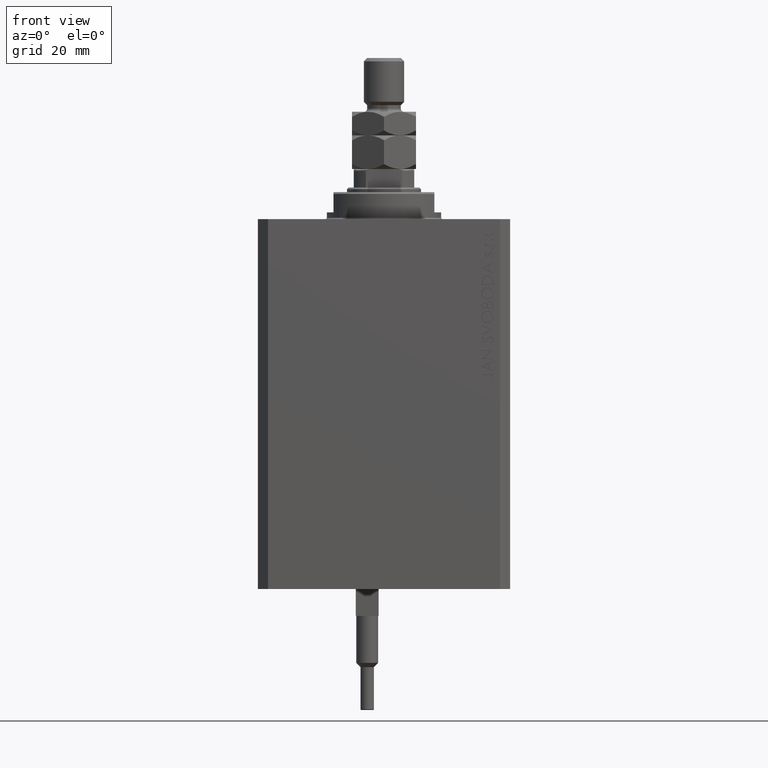
[diagram: clean part render]
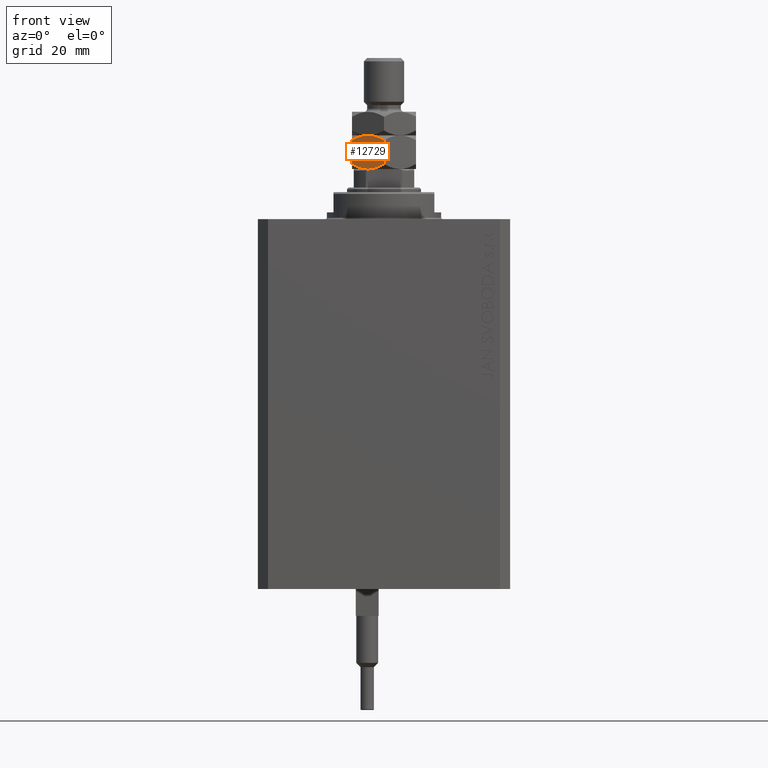
[diagram: same view with one face highlighted and labeled with its STEP entity id]
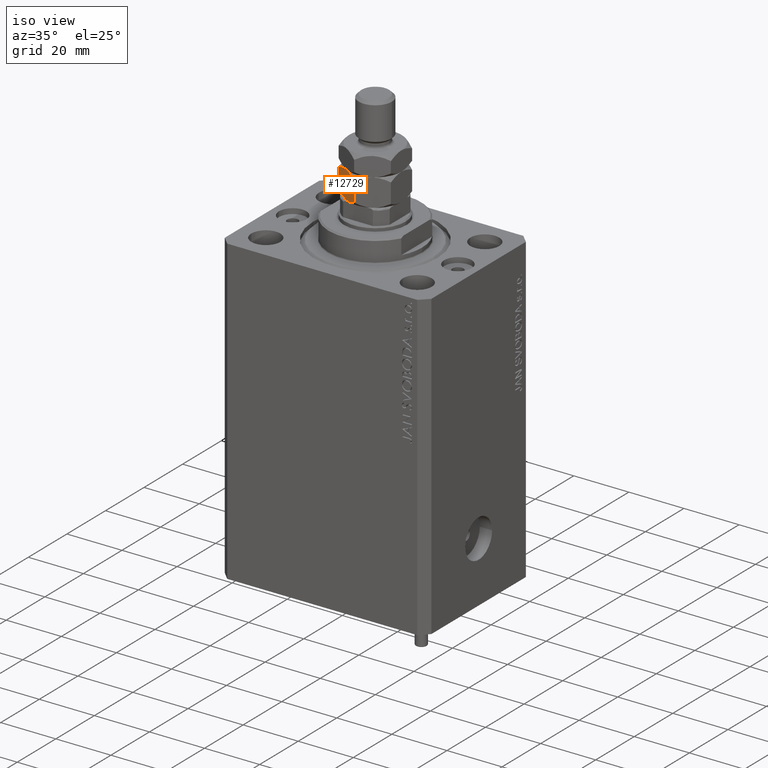
[diagram: same view with one face highlighted and labeled with its STEP entity id]
A machine part, front view. The second image highlights one B-rep face of the part: STEP entity #12729.
A second angle (iso view) of the same face is appended — the face is thin or edge-on in the first view.
In plain terms, the highlighted planar face has unit normal (0.5, 0.866, 0).
Its self-contained STEP definition (entity closure, byte-faithful):
#69 = CARTESIAN_POINT ( 'NONE',  ( -4.749999999999998224, -8.227241335952168555, 0.000000000000000000 ) ) ;
#2608 = CARTESIAN_POINT ( 'NONE',  ( -5.166021702288271733, -7.987051094147306074, 10.00000000000000000 ) ) ;
#3493 = VERTEX_POINT ( 'NONE', #15414 ) ;
#3885 = DIRECTION ( 'NONE',  ( -0.000000000000000000, -0.000000000000000000, -1.000000000000000000 ) ) ;
#4171 = B_SPLINE_CURVE_WITH_KNOTS ( 'NONE', 3,
 ( #47261, #47025, #29133, #44177, #36897, #48185 ),
 .UNSPECIFIED., .F., .F.,
 ( 4, 2, 4 ),
 ( 0.005685775058177687177, 0.008508623398180320194, 0.01133147173818295321 ),
 .UNSPECIFIED. ) ;
#7665 = LINE ( 'NONE', #46718, #39438 ) ;
#10412 = CARTESIAN_POINT ( 'NONE',  ( -4.749999999999998224, -8.227241335952168555, 10.00000000000000000 ) ) ;
#10881 = DIRECTION ( 'NONE',  ( -0.000000000000000000, -0.000000000000000000, -1.000000000000000000 ) ) ;
#11257 = CARTESIAN_POINT ( 'NONE',  ( -3.001642536556159024E-15, -10.96965511460288667, 8.530344885397118659 ) ) ;
#11539 = ORIENTED_EDGE ( 'NONE', *, *, #27156, .F. ) ;
#12729 = ADVANCED_FACE ( 'NONE', ( #42509 ), #39008, .F. ) ;
#15414 = CARTESIAN_POINT ( 'NONE',  ( -3.001642536556159024E-15, -10.96965511460288667, 8.530344885397118659 ) ) ;
#18366 = CARTESIAN_POINT ( 'NONE',  ( -1.506594318812384703, -10.09982247907699993, 0.6741748824712766597 ) ) ;
#19854 = CARTESIAN_POINT ( 'NONE',  ( -3.911732050025008789, -8.711215562523268119, 0.03770576873300111181 ) ) ;
#20802 = CARTESIAN_POINT ( 'NONE',  ( -4.749999999999998224, -8.227241335952168555, 10.00000000000000000 ) ) ;
#20926 = EDGE_CURVE ( 'NONE', #3493, #29682, #7665, .T. ) ;
#21303 = EDGE_LOOP ( 'NONE', ( #45549, #44424, #41027, #11539, #48795, #35915 ) ) ;
#21933 = CARTESIAN_POINT ( 'NONE',  ( -9.500000000000000000, -5.484827557301445999, 8.530344885397115107 ) ) ;
#22193 = CARTESIAN_POINT ( 'NONE',  ( -8.755131854751340370, -5.914877381471537632, 8.960394709567209404 ) ) ;
#22717 = EDGE_CURVE ( 'NONE', #42035, #38173, #4171, .T. ) ;
#22887 = CARTESIAN_POINT ( 'NONE',  ( -2.946964139499808652E-15, -10.96965511460288667, 1.469655114602881563 ) ) ;
#22988 = CARTESIAN_POINT ( 'NONE',  ( -9.500000000000000000, -5.484827557301445999, 10.00000000000000000 ) ) ;
#25362 = CARTESIAN_POINT ( 'NONE',  ( -9.500000000000000000, -5.484827557301445999, 8.530344885397115107 ) ) ;
#25698 = CARTESIAN_POINT ( 'NONE',  ( -7.993405681187616629, -6.354660192827335408, 9.325825117528722785 ) ) ;
#26606 = CARTESIAN_POINT ( 'NONE',  ( -9.500000000000000000, -5.484827557301445999, 1.469655114602884893 ) ) ;
#26643 = CARTESIAN_POINT ( 'NONE',  ( -3.091726368128225211, -9.184646063703393537, 0.1797418547120354371 ) ) ;
#27156 = EDGE_CURVE ( 'NONE', #38036, #42345, #39728, .T. ) ;
#28354 = CARTESIAN_POINT ( 'NONE',  ( -4.333978297711725602, -8.467431577757036365, 9.136662057716388954E-16 ) ) ;
#29133 = CARTESIAN_POINT ( 'NONE',  ( -6.388382028668172730, -7.281321030665154126, 0.1458756157754690086 ) ) ;
#29682 = VERTEX_POINT ( 'NONE', #36687 ) ;
#30202 = AXIS2_PLACEMENT_3D ( 'NONE', #22988, #38755, #38020 ) ;
#30645 = LINE ( 'NONE', #44954, #31544 ) ;
#31544 = VECTOR ( 'NONE', #10881, 1000.000000000000000 ) ;
#35915 = ORIENTED_EDGE ( 'NONE', *, *, #22717, .F. ) ;
#36084 = CARTESIAN_POINT ( 'NONE',  ( -3.111617971331826382, -9.173161641239186537, 9.854124384224533628 ) ) ;
#36687 = CARTESIAN_POINT ( 'NONE',  ( -2.946964139499808652E-15, -10.96965511460288667, 1.469655114602881563 ) ) ;
#36861 = EDGE_CURVE ( 'NONE', #38036, #38173, #30645, .T. ) ;
#36897 = CARTESIAN_POINT ( 'NONE',  ( -8.755994125639036341, -5.914379549142410930, 1.040103122761829813 ) ) ;
#36963 = CARTESIAN_POINT ( 'NONE',  ( -5.588267949974986770, -7.743267109381074320, 9.962294231267001976 ) ) ;
#38020 = DIRECTION ( 'NONE',  ( -0.8660254037844387076, 0.4999999999999998890, 0.000000000000000000 ) ) ;
#38036 = VERTEX_POINT ( 'NONE', #25362 ) ;
#38173 = VERTEX_POINT ( 'NONE', #26606 ) ;
#38359 = EDGE_CURVE ( 'NONE', #42345, #3493, #43077, .T. ) ;
#38657 = CARTESIAN_POINT ( 'NONE',  ( -4.749999999999998224, -8.227241335952168555, 0.000000000000000000 ) ) ;
#38755 = DIRECTION ( 'NONE',  ( 0.4999999999999998890, 0.8660254037844387076, -0.000000000000000000 ) ) ;
#39008 = PLANE ( 'NONE',  #30202 ) ;
#39438 = VECTOR ( 'NONE', #3885, 1000.000000000000000 ) ;
#39728 = B_SPLINE_CURVE_WITH_KNOTS ( 'NONE', 3,
 ( #21933, #22193, #25698, #41242, #48005, #36963, #2608, #10412 ),
 .UNSPECIFIED., .F., .F.,
 ( 4, 2, 2, 4 ),
 ( 2.544312669948822529E-07, 0.002843014744722344167, 0.004264394901450020009, 0.005685775058177695851 ),
 .UNSPECIFIED. ) ;
#40056 = CARTESIAN_POINT ( 'NONE',  ( -4.749999999999998224, -8.227241335952168555, 10.00000000000000000 ) ) ;
#41027 = ORIENTED_EDGE ( 'NONE', *, *, #38359, .F. ) ;
#41242 = CARTESIAN_POINT ( 'NONE',  ( -6.809745054052672053, -7.038046974532858435, 9.716537861568809831 ) ) ;
#41589 = CARTESIAN_POINT ( 'NONE',  ( -1.509821400858457840, -10.09795932238900029, 9.328363030548734613 ) ) ;
#42035 = VERTEX_POINT ( 'NONE', #69 ) ;
#42345 = VERTEX_POINT ( 'NONE', #40056 ) ;
#42509 = FACE_OUTER_BOUND ( 'NONE', #21303, .T. ) ;
#43077 = B_SPLINE_CURVE_WITH_KNOTS ( 'NONE', 3,
 ( #20802, #47864, #36084, #41589, #45094, #11257 ),
 .UNSPECIFIED., .F., .F.,
 ( 4, 2, 4 ),
 ( 0.005685775058177695851, 0.008508623398180325398, 0.01133147173818295494 ),
 .UNSPECIFIED. ) ;
#44177 = CARTESIAN_POINT ( 'NONE',  ( -7.990178599141542826, -6.356523349515333265, 0.6716369694512676070 ) ) ;
#44424 = ORIENTED_EDGE ( 'NONE', *, *, #20926, .F. ) ;
#44954 = CARTESIAN_POINT ( 'NONE',  ( -9.500000000000000000, -5.484827557301445999, 10.00000000000000000 ) ) ;
#45094 = CARTESIAN_POINT ( 'NONE',  ( -0.7440058743609659908, -10.54010312276191996, 8.959896877238168855 ) ) ;
#45191 = CARTESIAN_POINT ( 'NONE',  ( -2.690254945947328391, -9.416435697371479563, 0.2834621384311885595 ) ) ;
#45549 = ORIENTED_EDGE ( 'NONE', *, *, #48975, .F. ) ;
#46176 = CARTESIAN_POINT ( 'NONE',  ( -0.7448681452486625165, -10.53960529043279770, 1.039605290432793705 ) ) ;
#46718 = CARTESIAN_POINT ( 'NONE',  ( -3.035766082959412415E-15, -10.96965511460288667, 10.00000000000000000 ) ) ;
#47025 = CARTESIAN_POINT ( 'NONE',  ( -5.576215397865947665, -7.750225653585648189, 8.690558038829119507E-16 ) ) ;
#47261 = CARTESIAN_POINT ( 'NONE',  ( -4.749999999999998224, -8.227241335952168555, 0.000000000000000000 ) ) ;
#47548 = B_SPLINE_CURVE_WITH_KNOTS ( 'NONE', 3,
 ( #22887, #46176, #18366, #45191, #26643, #19854, #28354, #38657 ),
 .UNSPECIFIED., .F., .F.,
 ( 4, 2, 2, 4 ),
 ( 2.544312669954764994E-07, 0.002843014744722341131, 0.004264394901450013937, 0.005685775058177687177 ),
 .UNSPECIFIED. ) ;
#47864 = CARTESIAN_POINT ( 'NONE',  ( -3.923784602134047894, -8.704257018318688921, 10.00000000000000178 ) ) ;
#48005 = CARTESIAN_POINT ( 'NONE',  ( -6.408273631871771236, -7.269836608200942685, 9.820258145287965590 ) ) ;
#48185 = CARTESIAN_POINT ( 'NONE',  ( -9.500000000000000000, -5.484827557301445999, 1.469655114602884893 ) ) ;
#48795 = ORIENTED_EDGE ( 'NONE', *, *, #36861, .T. ) ;
#48975 = EDGE_CURVE ( 'NONE', #29682, #42035, #47548, .T. ) ;